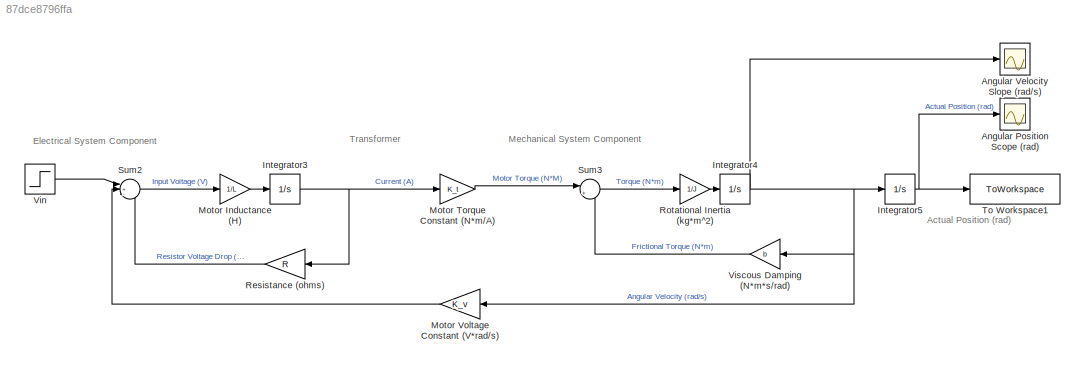
MODEL slx_87dce8796ffa
KIND model
CONFIG AbsTol = auto
CONFIG EnableMultiTasking = off
CONFIG FixedStep = auto
CONFIG MaxStep = auto
CONFIG MinStep = auto
CONFIG RelTol = 1e-9
CONFIG SampleTimeConstraint = Unconstrained
CONFIG SolverName = VariableStepAuto
CONFIG StartTime = 0.0
CONFIG StopTime = 100
BLOCK [Scope] Angular Position Scope (rad)
  Floating = off
  NumInputPorts = 1
  ScopeSpecificationString = Simulink.scopes.TimeScopeBlockCfg('CurrentConfiguration', extmgr.ConfigurationSet(extmgr.Configuration('Core','General UI',true),extmgr.Configuration('Core','Source UI',true),extmgr.Configuration('Sources','WiredSimulink',true,'DataLoggingVariableName','ScopeData2'),extmgr.Configuration('Visuals','Time Domain',true,'SerializedDisplays',{struct('MinYLimReal','-0.20123','MaxYLimReal','1.81108','YLab...<+1407ch>
BLOCK [Scope] Angular Velocity Slope (rad//s)
  Floating = off
  NumInputPorts = 1
  ScopeSpecificationString = Simulink.scopes.TimeScopeBlockCfg('CurrentConfiguration', extmgr.ConfigurationSet(extmgr.Configuration('Core','General UI',true),extmgr.Configuration('Core','Source UI',true),extmgr.Configuration('Sources','WiredSimulink',true,'DataLoggingVariableName','ScopeData3'),extmgr.Configuration('Visuals','Time Domain',true,'SerializedDisplays',{struct('MinYLimReal','-3.86001','MaxYLimReal','33.2828','YLab...<+1410ch>
BLOCK [Integrator] Integrator3
BLOCK [Integrator] Integrator4
BLOCK [Integrator] Integrator5
BLOCK [Gain] Motor Inductance (H)
  Gain = 1/L
BLOCK [Gain] Motor Torque Constant (N*m//A) 
  Gain = K_t
BLOCK [Gain] Motor Voltage Constant (V*rad//s)
  Gain = K_v
BLOCK [Gain] Resistance (ohms)
  Gain = R
BLOCK [Gain] Rotational Inertia (kg*m^2)
  Gain = 1/J
BLOCK [Sum] Sum2
  Inputs = |+--
BLOCK [Sum] Sum3
  Inputs = |+-
BLOCK [ToWorkspace] To Workspace1
  FixptAsFi = on
  MaxDataPoints = inf
  SampleTime = -1
  VariableName = theta
BLOCK [Step] Vin
  SampleTime = 0
BLOCK [Gain] Viscous Damping (N*m*s//rad)
  Gain = b
ANNOTATION (root): Actual Position (rad)
ANNOTATION (root): Electrical System Component
ANNOTATION (root): Mechanical System Component
ANNOTATION (root): Transformer
NET Integrator3:1 -> Motor Torque Constant (N*m//A) :1, Resistance (ohms):1
NET Integrator4:1 -> Angular Velocity Slope (rad//s):1, Integrator5:1, Motor Voltage Constant (V*rad//s):1, Viscous Damping (N*m*s//rad):1
NET Integrator5:1 -> Angular Position Scope (rad):1, To Workspace1:1
LINE Motor Inductance (H):1 -> Integrator3:1
LINE Motor Torque Constant (N*m//A) :1 -> Sum3:1
LINE Motor Voltage Constant (V*rad//s):1 -> Sum2:2
LINE Resistance (ohms):1 -> Sum2:3
LINE Rotational Inertia (kg*m^2):1 -> Integrator4:1
LINE Sum2:1 -> Motor Inductance (H):1
LINE Sum3:1 -> Rotational Inertia (kg*m^2):1
LINE Vin:1 -> Sum2:1
LINE Viscous Damping (N*m*s//rad):1 -> Sum3:2
note: NET lines group one-source signal fan-out (src -> all destinations, sorted); 1:1 wires keep LINE
